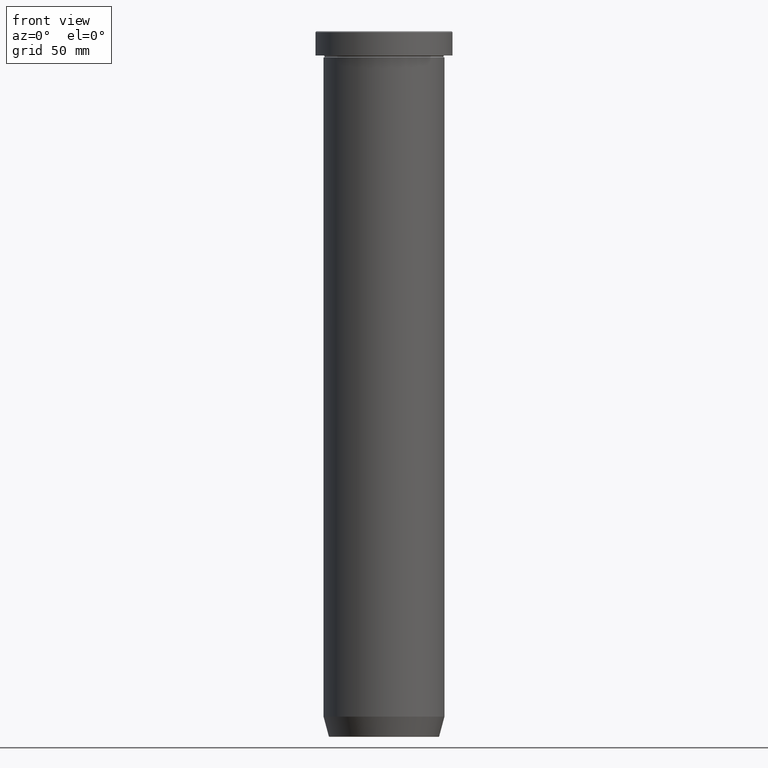
[diagram: clean part render]
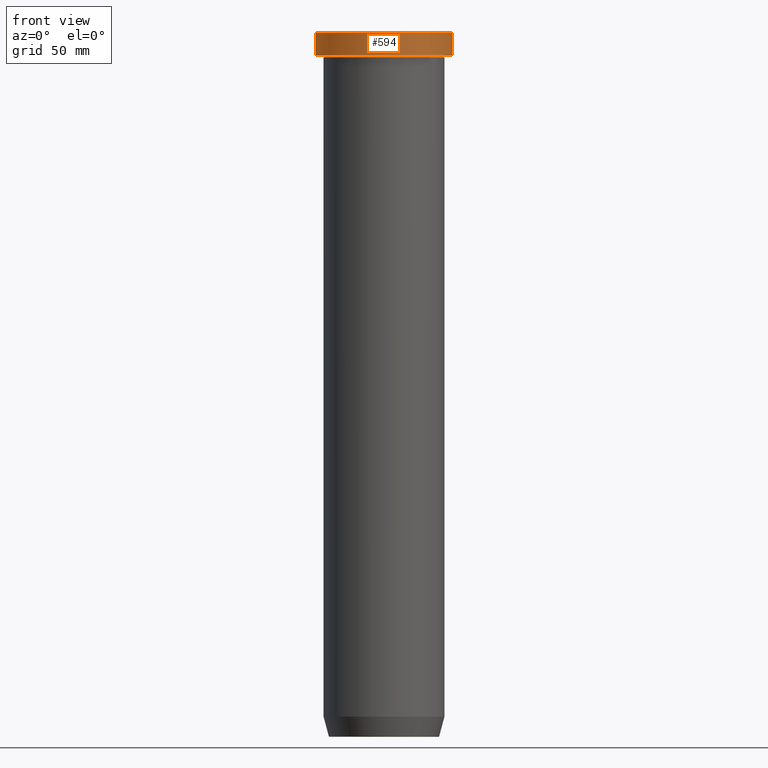
[diagram: same view with one face highlighted and labeled with its STEP entity id]
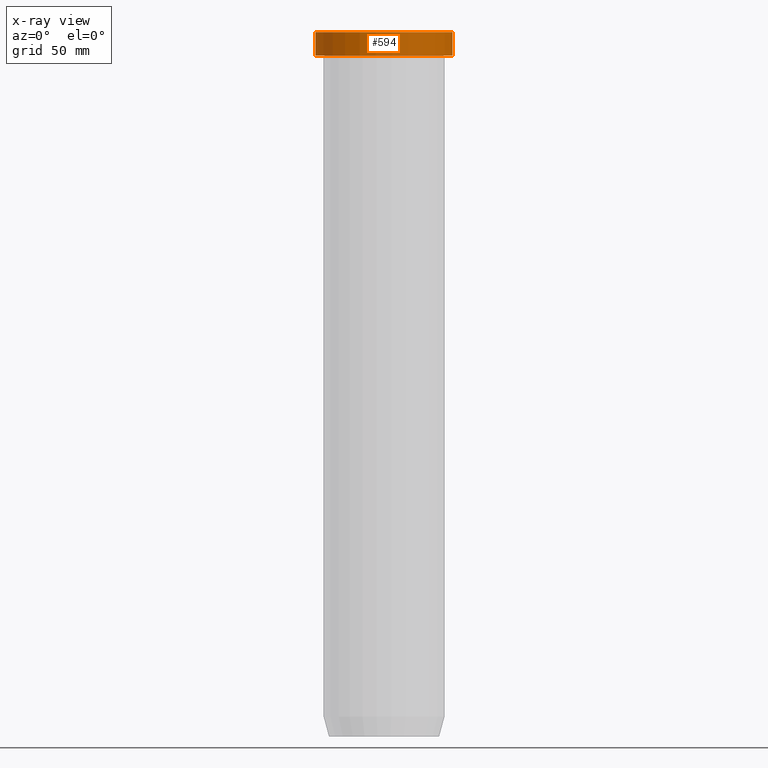
[diagram: x-ray of the same camera — body ghosted, the highlighted face saturated]
A machine part, front view. The second image highlights one B-rep face of the part: STEP entity #594.
The next image is the same camera in x-ray: the body ghosted, the highlighted face saturated — about 0% of this face is hidden behind the body in this view.
In plain terms, the highlighted cylindrical surface (partial cylindrical patch) has radius 34 mm, axis along (-0, -0, 1).
Its self-contained STEP definition (entity closure, byte-faithful):
#9 = VERTEX_POINT ( 'NONE', #41 ) ;
#30 = EDGE_CURVE ( 'NONE', #473, #158, #78, .T. ) ;
#31 = CARTESIAN_POINT ( 'NONE',  ( 0.000000000000000000, 0.000000000000000000, -0.4999999999999935052 ) ) ;
#41 = CARTESIAN_POINT ( 'NONE',  ( 34.00000000000000000, 0.000000000000000000, -0.4999999999999935052 ) ) ;
#78 = LINE ( 'NONE', #178, #119 ) ;
#79 = CARTESIAN_POINT ( 'NONE',  ( 0.000000000000000000, 0.000000000000000000, 0.000000000000000000 ) ) ;
#90 = DIRECTION ( 'NONE',  ( 1.000000000000000000, 0.000000000000000000, 0.000000000000000000 ) ) ;
#98 = DIRECTION ( 'NONE',  ( -0.000000000000000000, -0.000000000000000000, 1.000000000000000000 ) ) ;
#119 = VECTOR ( 'NONE', #225, 1000.000000000000000 ) ;
#151 = CARTESIAN_POINT ( 'NONE',  ( 34.00000000000000000, 0.000000000000000000, 0.000000000000000000 ) ) ;
#158 = VERTEX_POINT ( 'NONE', #486 ) ;
#160 = ORIENTED_EDGE ( 'NONE', *, *, #462, .T. ) ;
#165 = AXIS2_PLACEMENT_3D ( 'NONE', #79, #277, #90 ) ;
#178 = CARTESIAN_POINT ( 'NONE',  ( -34.00000000000000000, 4.163799117101000559E-15, 0.000000000000000000 ) ) ;
#200 = ORIENTED_EDGE ( 'NONE', *, *, #409, .T. ) ;
#211 = DIRECTION ( 'NONE',  ( 1.000000000000000000, 0.000000000000000000, 0.000000000000000000 ) ) ;
#222 = CYLINDRICAL_SURFACE ( 'NONE', #165, 34.00000000000000000 ) ;
#225 = DIRECTION ( 'NONE',  ( -0.000000000000000000, -0.000000000000000000, 1.000000000000000000 ) ) ;
#233 = DIRECTION ( 'NONE',  ( 1.000000000000000000, 0.000000000000000000, 0.000000000000000000 ) ) ;
#236 = ORIENTED_EDGE ( 'NONE', *, *, #30, .F. ) ;
#252 = FACE_OUTER_BOUND ( 'NONE', #372, .T. ) ;
#256 = DIRECTION ( 'NONE',  ( 0.000000000000000000, 0.000000000000000000, -1.000000000000000000 ) ) ;
#266 = DIRECTION ( 'NONE',  ( -0.000000000000000000, -0.000000000000000000, 1.000000000000000000 ) ) ;
#277 = DIRECTION ( 'NONE',  ( -0.000000000000000000, -0.000000000000000000, 1.000000000000000000 ) ) ;
#286 = AXIS2_PLACEMENT_3D ( 'NONE', #31, #256, #211 ) ;
#369 = ORIENTED_EDGE ( 'NONE', *, *, #488, .T. ) ;
#372 = EDGE_LOOP ( 'NONE', ( #236, #200, #160, #369 ) ) ;
#376 = CIRCLE ( 'NONE', #445, 34.00000000000000000 ) ;
#409 = EDGE_CURVE ( 'NONE', #473, #517, #376, .T. ) ;
#445 = AXIS2_PLACEMENT_3D ( 'NONE', #596, #266, #233 ) ;
#462 = EDGE_CURVE ( 'NONE', #517, #9, #561, .T. ) ;
#473 = VERTEX_POINT ( 'NONE', #532 ) ;
#483 = CIRCLE ( 'NONE', #286, 34.00000000000000000 ) ;
#486 = CARTESIAN_POINT ( 'NONE',  ( -34.00000000000000000, 4.163799117101000559E-15, -0.4999999999999935052 ) ) ;
#488 = EDGE_CURVE ( 'NONE', #9, #158, #483, .T. ) ;
#489 = CARTESIAN_POINT ( 'NONE',  ( 34.00000000000000000, 0.000000000000000000, -11.99999999999999645 ) ) ;
#502 = VECTOR ( 'NONE', #98, 1000.000000000000000 ) ;
#517 = VERTEX_POINT ( 'NONE', #489 ) ;
#532 = CARTESIAN_POINT ( 'NONE',  ( -34.00000000000000000, 4.163799117101000559E-15, -11.99999999999999645 ) ) ;
#561 = LINE ( 'NONE', #151, #502 ) ;
#594 = ADVANCED_FACE ( 'NONE', ( #252 ), #222, .T. ) ;
#596 = CARTESIAN_POINT ( 'NONE',  ( 0.000000000000000000, 0.000000000000000000, -11.99999999999999645 ) ) ;